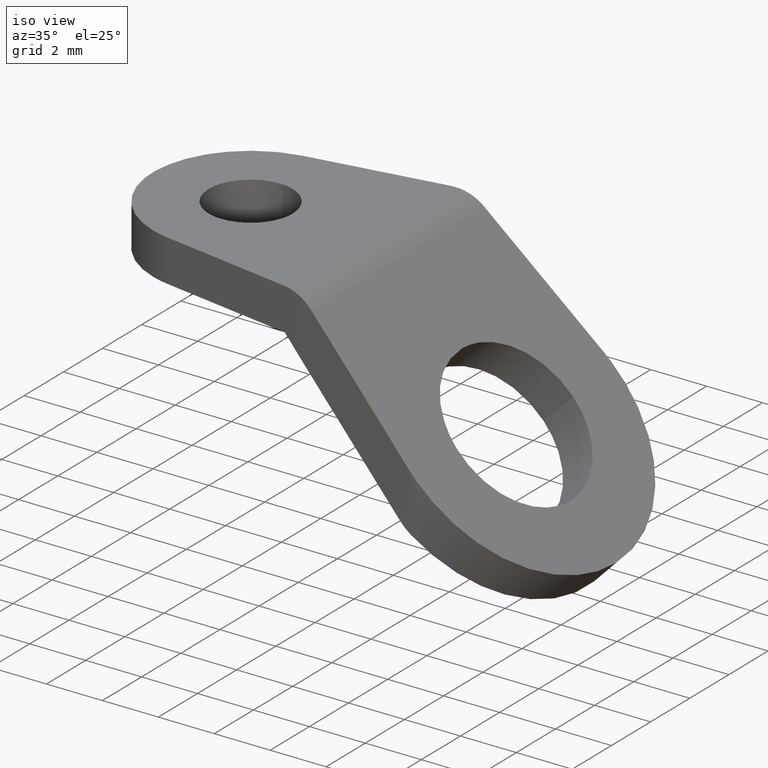
[diagram: clean part render]
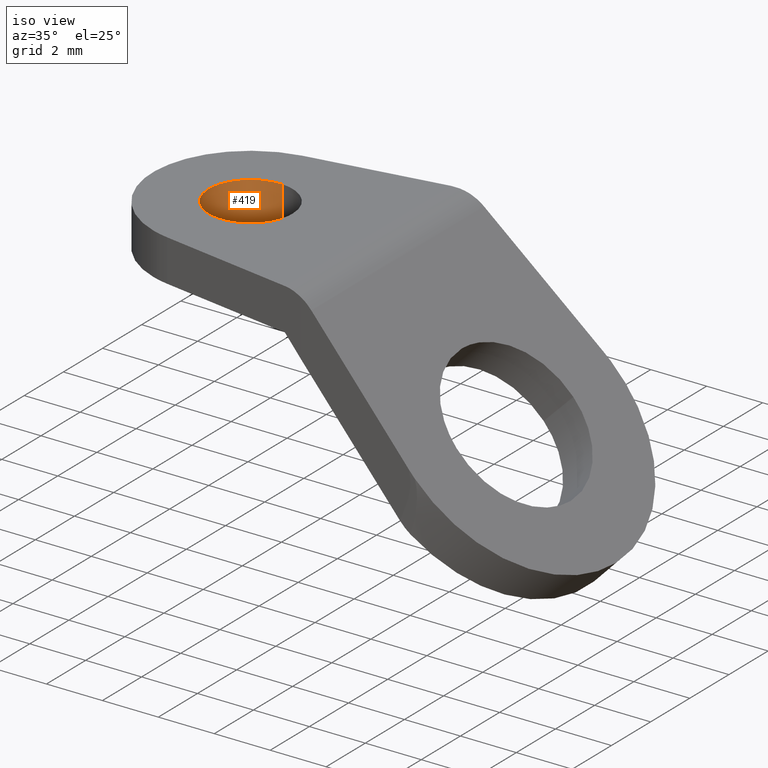
[diagram: same view with one face highlighted and labeled with its STEP entity id]
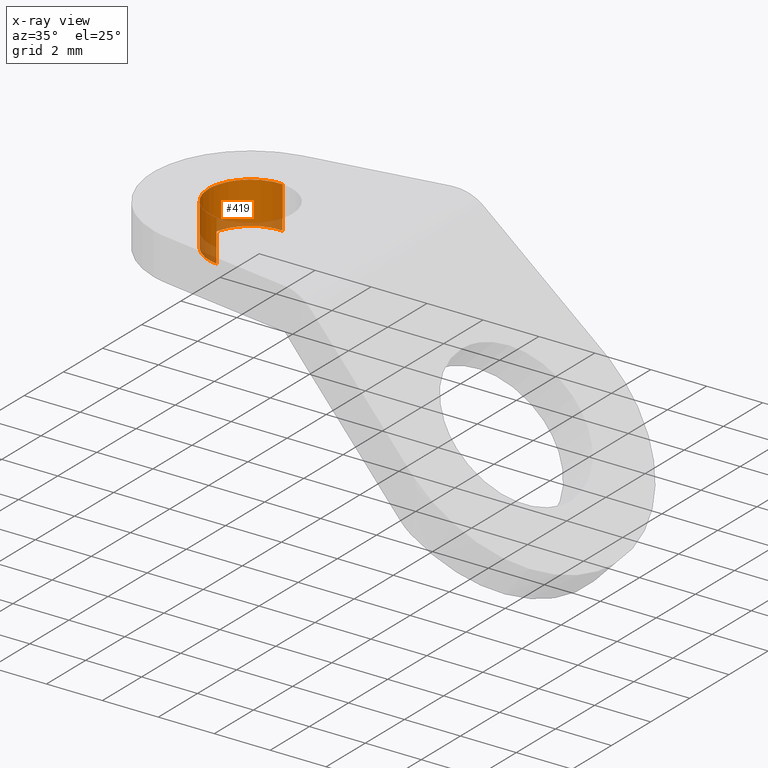
[diagram: x-ray of the same camera — body ghosted, the highlighted face saturated]
A machine part, iso view. The second image highlights one B-rep face of the part: STEP entity #419.
The next image is the same camera in x-ray: the body ghosted, the highlighted face saturated — about 17% of this face is hidden behind the body in this view.
In plain terms, the highlighted face is a freeform B-spline surface patch.
Its self-contained STEP definition (entity closure, byte-faithful):
#256=CARTESIAN_POINT('',(3.322948647998651,-1.489514289543573,3.904214E-017));
#257=VERTEX_POINT('',#256);
#275=CARTESIAN_POINT('',(3.591572391520060,1.497202223185339,-1.793704E-015));
#276=VERTEX_POINT('',#275);
#290=CARTESIAN_POINT('',(3.591572396663350,1.497202222870765,-1.499999999999946));
#291=VERTEX_POINT('',#290);
#292=CARTESIAN_POINT('',(3.591572396663350,1.497202222870765,-1.499999999999946));
#293=CARTESIAN_POINT('',(3.591572391520060,1.497202223185339,-1.793704E-015));
#294=QUASI_UNIFORM_CURVE('',1,(#292,#293),.UNSPECIFIED.,.F.,.U.);
#295=EDGE_CURVE('',#291,#276,#294,.T.);
#312=CARTESIAN_POINT('',(3.322948647998651,-1.489514289543573,-1.499999999999946));
#313=VERTEX_POINT('',#312);
#329=CARTESIAN_POINT('',(3.322948647998651,-1.489514289543573,-1.499999999999946));
#330=CARTESIAN_POINT('',(3.322948647998651,-1.489514289543573,3.904214E-017));
#331=QUASI_UNIFORM_CURVE('',1,(#329,#330),.UNSPECIFIED.,.F.,.U.);
#332=EDGE_CURVE('',#313,#257,#331,.T.);
#337=CARTESIAN_POINT('',(3.591572809302285,1.497202197632800,-1.537499999999945));
#338=CARTESIAN_POINT('',(2.094370611669486,1.588775006935085,-1.537499999999945));
#339=CARTESIAN_POINT('',(2.002797802367200,0.091572809302285,-1.537499999999945));
#340=CARTESIAN_POINT('',(1.916320704901209,-1.322315236259252,-1.537499999999945));
#341=CARTESIAN_POINT('',(3.322948648014862,-1.489514289545500,-1.537499999999946));
#342=CARTESIAN_POINT('',(3.591572809302285,1.497202197632800,0.038437499999999));
#343=CARTESIAN_POINT('',(2.094370611669486,1.588775006935085,0.038437499999999));
#344=CARTESIAN_POINT('',(2.002797802367200,0.091572809302285,0.038437499999999));
#345=CARTESIAN_POINT('',(1.916320704901209,-1.322315236259252,0.038437499999999));
#346=CARTESIAN_POINT('',(3.322948648014862,-1.489514289545500,0.038437499999999));
#354=(BOUNDED_SURFACE()B_SPLINE_SURFACE(2,1,((#337,#342),(#338,#343),(#339,#344),(#340,#345),(#341,#346)),.UNSPECIFIED.,.F.,.F.,.U.)B_SPLINE_SURFACE_WITH_KNOTS((3,2,3),(2,2),(0.0,1.570796326794897,3.078760800517997),(0.0,1.0),.UNSPECIFIED.)GEOMETRIC_REPRESENTATION_ITEM()RATIONAL_B_SPLINE_SURFACE(((1.0,1.0),(0.707106781186548,0.707106781186548),(1.0,1.0),(0.718822509939086,0.718822509939086),(0.977505800795127,0.977505800795127)))REPRESENTATION_ITEM('')SURFACE());
#355=CARTESIAN_POINT('',(2.0,0.0,0.0));
#356=VERTEX_POINT('',#355);
#357=CARTESIAN_POINT('',(2.0,0.0,0.0));
#358=CARTESIAN_POINT('',(2.0,-1.332261788897848,0.0));
#359=CARTESIAN_POINT('',(3.322948647998651,-1.489514289543573,3.904214E-017));
#367=(BOUNDED_CURVE()B_SPLINE_CURVE(2,(#357,#358,#359),.UNSPECIFIED.,.F.,.U.)B_SPLINE_CURVE_WITH_KNOTS((3,3),(0.0,0.229562473511965),.UNSPECIFIED.)CURVE()GEOMETRIC_REPRESENTATION_ITEM()RATIONAL_B_SPLINE_CURVE((1.0,0.731050832857210,0.956026754180675))REPRESENTATION_ITEM(''));
#368=EDGE_CURVE('',#356,#257,#367,.T.);
#369=ORIENTED_EDGE('',*,*,#368,.T.);
#370=ORIENTED_EDGE('',*,*,#332,.F.);
#371=CARTESIAN_POINT('',(2.0,0.0,-1.499999999999946));
#372=VERTEX_POINT('',#371);
#373=CARTESIAN_POINT('',(2.0,0.0,-1.499999999999946));
#374=CARTESIAN_POINT('',(2.0,-1.332261788897848,-1.499999999999947));
#375=CARTESIAN_POINT('',(3.322948647998651,-1.489514289543573,-1.499999999999945));
#383=(BOUNDED_CURVE()B_SPLINE_CURVE(2,(#373,#374,#375),.UNSPECIFIED.,.F.,.U.)B_SPLINE_CURVE_WITH_KNOTS((3,3),(0.0,0.229562473511965),.UNSPECIFIED.)CURVE()GEOMETRIC_REPRESENTATION_ITEM()RATIONAL_B_SPLINE_CURVE((1.0,0.731050832857210,0.956026754180675))REPRESENTATION_ITEM(''));
#384=EDGE_CURVE('',#372,#313,#383,.T.);
#385=ORIENTED_EDGE('',*,*,#384,.F.);
#386=CARTESIAN_POINT('',(3.591572396663350,1.497202222870765,-1.499999999999946));
#387=CARTESIAN_POINT('',(3.545828731151959,1.500000000000000,-1.499999999999946));
#388=CARTESIAN_POINT('',(3.500000000000000,1.500000000000000,-1.499999999999946));
#389=CARTESIAN_POINT('',(2.000000000000000,1.500000000000000,-1.499999999999946));
#390=CARTESIAN_POINT('',(2.0,0.0,-1.499999999999946));
#398=(BOUNDED_CURVE()B_SPLINE_CURVE(2,(#386,#387,#388,#389,#390),.UNSPECIFIED.,.F.,.U.)B_SPLINE_CURVE_WITH_KNOTS((3,2,3),(0.739333057352074,0.750000000000000,1.0),.UNSPECIFIED.)CURVE()GEOMETRIC_REPRESENTATION_ITEM()RATIONAL_B_SPLINE_CURVE((0.976072245512348,0.987502899331802,1.0,0.707106781186548,1.0))REPRESENTATION_ITEM(''));
#399=EDGE_CURVE('',#291,#372,#398,.T.);
#400=ORIENTED_EDGE('',*,*,#399,.F.);
#401=ORIENTED_EDGE('',*,*,#295,.T.);
#402=CARTESIAN_POINT('',(3.591572391520060,1.497202223185339,-1.793704E-015));
#403=CARTESIAN_POINT('',(3.545828725994248,1.500000000000000,0.0));
#404=CARTESIAN_POINT('',(3.500000000000000,1.500000000000000,0.0));
#405=CARTESIAN_POINT('',(2.000000000000000,1.500000000000000,0.0));
#406=CARTESIAN_POINT('',(2.0,0.0,0.0));
#414=(BOUNDED_CURVE()B_SPLINE_CURVE(2,(#402,#403,#404,#405,#406),.UNSPECIFIED.,.F.,.U.)B_SPLINE_CURVE_WITH_KNOTS((3,2,3),(0.739333058537563,0.750000000000000,1.0),.UNSPECIFIED.)CURVE()GEOMETRIC_REPRESENTATION_ITEM()RATIONAL_B_SPLINE_CURVE((0.976072248053079,0.987502900720689,1.0,0.707106781186548,1.0))REPRESENTATION_ITEM(''));
#415=EDGE_CURVE('',#276,#356,#414,.T.);
#416=ORIENTED_EDGE('',*,*,#415,.T.);
#417=EDGE_LOOP('',(#369,#370,#385,#400,#401,#416));
#418=FACE_OUTER_BOUND('',#417,.T.);
#419=ADVANCED_FACE('',(#418),#354,.F.);